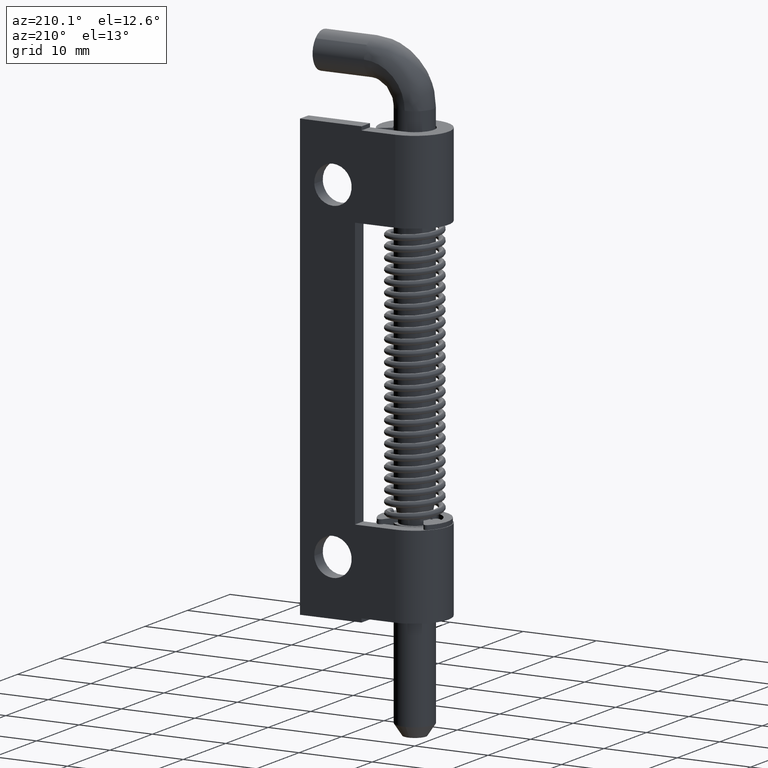
[diagram: clean part render]
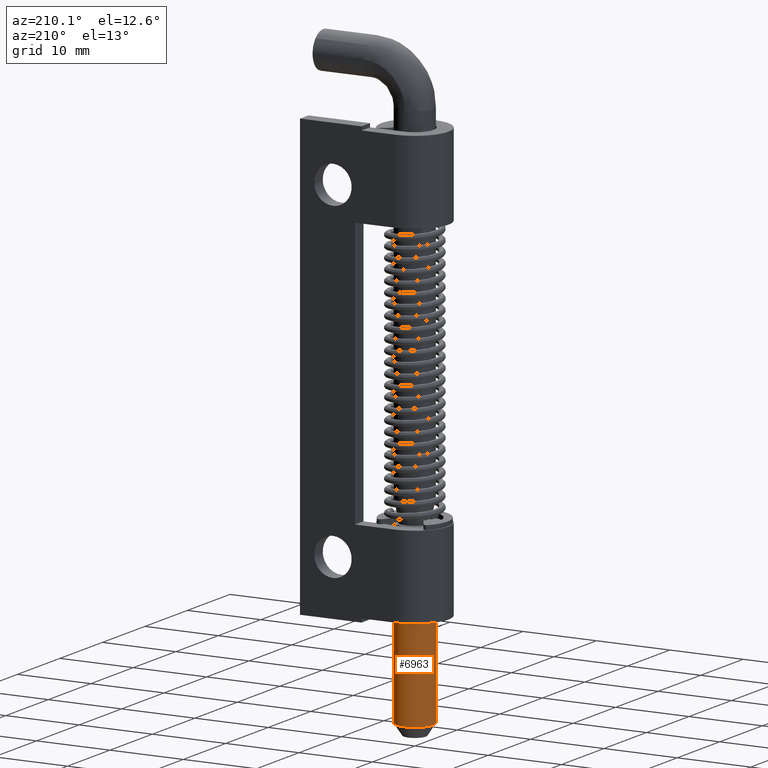
[diagram: same view with one face highlighted and labeled with its STEP entity id]
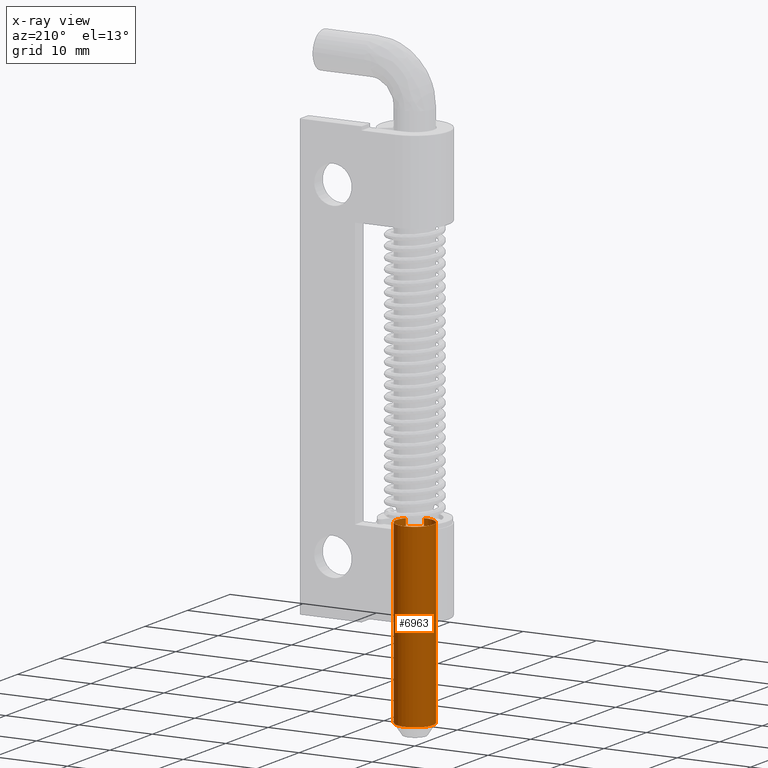
[diagram: x-ray of the same camera — body ghosted, the highlighted face saturated]
A machine part, auxiliary view. The second image highlights one B-rep face of the part: STEP entity #6963.
The next image is the same camera in x-ray: the body ghosted, the highlighted face saturated — about 0% of this face is hidden behind the body in this view.
In plain terms, the highlighted face is a freeform B-spline surface patch.
Its self-contained STEP definition (entity closure, byte-faithful):
#6808=CARTESIAN_POINT('',(2.052652900776311,-1.427100581225652,0.893749999999128));
#6809=CARTESIAN_POINT('',(2.562348395924031,-0.693986216063638,0.893749999999128));
#6810=CARTESIAN_POINT('',(2.492293334332819,0.196147739319614,0.893749999999128));
#6811=CARTESIAN_POINT('',(2.296145595013206,2.688441073652433,0.893749999999128));
#6812=CARTESIAN_POINT('',(-0.196147739319614,2.492293334332819,0.893749999999128));
#6813=CARTESIAN_POINT('',(-2.688441073652433,2.296145595013206,0.893749999999128));
#6814=CARTESIAN_POINT('',(-2.492293334332819,-0.196147739319614,0.893749999999128));
#6815=CARTESIAN_POINT('',(-2.296145595013206,-2.688441073652433,0.893749999999128));
#6816=CARTESIAN_POINT('',(0.196147739319614,-2.492293334332819,0.893749999999128));
#6817=CARTESIAN_POINT('',(2.052652900776311,-1.427100581225652,26.371406250035751));
#6818=CARTESIAN_POINT('',(2.562348395924031,-0.693986216063638,26.371406250035740));
#6819=CARTESIAN_POINT('',(2.492293334332819,0.196147739319614,26.371406250035751));
#6820=CARTESIAN_POINT('',(2.296145595013206,2.688441073652433,26.371406250035744));
#6821=CARTESIAN_POINT('',(-0.196147739319614,2.492293334332819,26.371406250035751));
#6822=CARTESIAN_POINT('',(-2.688441073652433,2.296145595013206,26.371406250035744));
#6823=CARTESIAN_POINT('',(-2.492293334332819,-0.196147739319614,26.371406250035751));
#6824=CARTESIAN_POINT('',(-2.296145595013206,-2.688441073652433,26.371406250035744));
#6825=CARTESIAN_POINT('',(0.196147739319614,-2.492293334332819,26.371406250035751));
#6833=(BOUNDED_SURFACE()B_SPLINE_SURFACE(2,1,((#6808,#6817),(#6809,#6818),(#6810,#6819),(#6811,#6820),(#6812,#6821),(#6813,#6822),(#6814,#6823),(#6815,#6824),(#6816,#6825)),.UNSPECIFIED.,.F.,.F.,.U.)B_SPLINE_SURFACE_WITH_KNOTS((3,2,2,2,3),(2,2),(0.0,1.822539674441617,5.964675298172566,10.106810921903520,14.248946545634469),(0.0,25.477656250036620),.UNSPECIFIED.)GEOMETRIC_REPRESENTATION_ITEM()RATIONAL_B_SPLINE_SURFACE(((0.855662221768731,0.855662221768731),(0.871126983722081,0.871126983722081),(1.0,1.0),(0.707106781186548,0.707106781186548),(1.0,1.0),(0.707106781186548,0.707106781186548),(1.0,1.0),(0.707106781186548,0.707106781186548),(1.0,1.0)))REPRESENTATION_ITEM('')SURFACE());
#6834=CARTESIAN_POINT('',(2.500000000000000,0.0,25.750000000034849));
#6835=VERTEX_POINT('',#6834);
#6836=CARTESIAN_POINT('',(2.052653886918321,-1.427099162818101,25.750000000034841));
#6837=VERTEX_POINT('',#6836);
#6838=CARTESIAN_POINT('',(2.500000000000000,0.0,25.750000000034849));
#6839=CARTESIAN_POINT('',(2.500000000000000,-0.783663330370304,25.750000000034849));
#6840=CARTESIAN_POINT('',(2.052653886918321,-1.427099162818100,25.750000000034831));
#6848=(BOUNDED_CURVE()B_SPLINE_CURVE(2,(#6838,#6839,#6840),.UNSPECIFIED.,.F.,.U.)B_SPLINE_CURVE_WITH_KNOTS((3,3),(0.500000000000000,0.598090503844090),.UNSPECIFIED.)CURVE()GEOMETRIC_REPRESENTATION_ITEM()RATIONAL_B_SPLINE_CURVE((1.0,0.885079826376285,0.860340274613374))REPRESENTATION_ITEM(''));
#6849=EDGE_CURVE('',#6835,#6837,#6848,.T.);
#6850=ORIENTED_EDGE('',*,*,#6849,.T.);
#6851=CARTESIAN_POINT('',(2.052653874762008,-1.427099180303038,1.500000000000000));
#6852=VERTEX_POINT('',#6851);
#6853=CARTESIAN_POINT('',(2.052653874762008,-1.427099180303038,1.500000000000000));
#6854=CARTESIAN_POINT('',(2.052653886918321,-1.427099162818101,25.750000000034841));
#6855=QUASI_UNIFORM_CURVE('',1,(#6853,#6854),.UNSPECIFIED.,.F.,.U.);
#6856=EDGE_CURVE('',#6852,#6837,#6855,.T.);
#6857=ORIENTED_EDGE('',*,*,#6856,.F.);
#6858=CARTESIAN_POINT('',(2.500000000000000,0.0,1.500000000000000));
#6859=VERTEX_POINT('',#6858);
#6860=CARTESIAN_POINT('',(2.500000000000000,0.0,1.500000000000000));
#6861=CARTESIAN_POINT('',(2.500000000000000,-0.783663342064315,1.500000000000000));
#6862=CARTESIAN_POINT('',(2.052653874762008,-1.427099180303038,1.500000000000001));
#6870=(BOUNDED_CURVE()B_SPLINE_CURVE(2,(#6860,#6861,#6862),.UNSPECIFIED.,.F.,.U.)B_SPLINE_CURVE_WITH_KNOTS((3,3),(0.500000000000000,0.598090505139608),.UNSPECIFIED.)CURVE()GEOMETRIC_REPRESENTATION_ITEM()RATIONAL_B_SPLINE_CURVE((1.0,0.885079824858491,0.860340273959885))REPRESENTATION_ITEM(''));
#6871=EDGE_CURVE('',#6859,#6852,#6870,.T.);
#6872=ORIENTED_EDGE('',*,*,#6871,.F.);
#6873=CARTESIAN_POINT('',(-0.196147739445208,2.492293334336904,1.500000000020889));
#6874=VERTEX_POINT('',#6873);
#6875=CARTESIAN_POINT('',(-0.196147739445208,2.492293334336904,1.500000000020889));
#6876=CARTESIAN_POINT('',(-0.098225267644254,2.500000000000000,1.500000000000000));
#6877=CARTESIAN_POINT('',(0.0,2.500000000000000,1.500000000000000));
#6878=CARTESIAN_POINT('',(2.500000000000000,2.500000000000000,1.500000000000000));
#6879=CARTESIAN_POINT('',(2.500000000000000,0.0,1.500000000000000));
#6887=(BOUNDED_CURVE()B_SPLINE_CURVE(2,(#6875,#6876,#6877,#6878,#6879),.UNSPECIFIED.,.F.,.U.)B_SPLINE_CURVE_WITH_KNOTS((3,2,3),(0.236331300615640,0.250000000000000,0.500000000000000),.UNSPECIFIED.)CURVE()GEOMETRIC_REPRESENTATION_ITEM()RATIONAL_B_SPLINE_CURVE((0.969723356136073,0.983986122561285,1.0,0.707106781186548,1.0))REPRESENTATION_ITEM(''));
#6888=EDGE_CURVE('',#6874,#6859,#6887,.T.);
#6889=ORIENTED_EDGE('',*,*,#6888,.F.);
#6890=CARTESIAN_POINT('',(-2.500000000000000,0.0,1.500000000000000));
#6891=VERTEX_POINT('',#6890);
#6892=CARTESIAN_POINT('',(-2.500000000000000,0.0,1.500000000000000));
#6893=CARTESIAN_POINT('',(-2.500000000000000,2.310976228913915,1.500000000000001));
#6894=CARTESIAN_POINT('',(-0.196147739445208,2.492293334336904,1.500000000020889));
#6902=(BOUNDED_CURVE()B_SPLINE_CURVE(2,(#6892,#6893,#6894),.UNSPECIFIED.,.F.,.U.)B_SPLINE_CURVE_WITH_KNOTS((3,3),(0.0,0.236331300615640),.UNSPECIFIED.)CURVE()GEOMETRIC_REPRESENTATION_ITEM()RATIONAL_B_SPLINE_CURVE((1.0,0.723120658625262,0.969723356136073))REPRESENTATION_ITEM(''));
#6903=EDGE_CURVE('',#6891,#6874,#6902,.T.);
#6904=ORIENTED_EDGE('',*,*,#6903,.F.);
#6905=CARTESIAN_POINT('',(0.196147739382411,-2.492293334334861,1.500000000020890));
#6906=VERTEX_POINT('',#6905);
#6907=CARTESIAN_POINT('',(0.196147739382411,-2.492293334334861,1.500000000020890));
#6908=CARTESIAN_POINT('',(0.098225267644253,-2.500000000000000,1.500000000000000));
#6909=CARTESIAN_POINT('',(0.0,-2.500000000000000,1.500000000000000));
#6910=CARTESIAN_POINT('',(-2.500000000000000,-2.500000000000000,1.500000000000000));
#6911=CARTESIAN_POINT('',(-2.500000000000000,0.0,1.500000000000000));
#6919=(BOUNDED_CURVE()B_SPLINE_CURVE(2,(#6907,#6908,#6909,#6910,#6911),.UNSPECIFIED.,.F.,.U.)B_SPLINE_CURVE_WITH_KNOTS((3,2,3),(0.736331300615640,0.750000000000000,1.0),.UNSPECIFIED.)CURVE()GEOMETRIC_REPRESENTATION_ITEM()RATIONAL_B_SPLINE_CURVE((0.969723356136073,0.983986122561285,1.0,0.707106781186548,1.0))REPRESENTATION_ITEM(''));
#6920=EDGE_CURVE('',#6906,#6891,#6919,.T.);
#6921=ORIENTED_EDGE('',*,*,#6920,.F.);
#6922=CARTESIAN_POINT('',(0.196147739368914,-2.492293334328940,25.750000000034849));
#6923=VERTEX_POINT('',#6922);
#6924=CARTESIAN_POINT('',(0.196147739382411,-2.492293334334861,1.500000000020890));
#6925=CARTESIAN_POINT('',(0.196147739368914,-2.492293334328940,25.750000000034849));
#6926=QUASI_UNIFORM_CURVE('',1,(#6924,#6925),.UNSPECIFIED.,.F.,.U.);
#6927=EDGE_CURVE('',#6906,#6923,#6926,.T.);
#6928=ORIENTED_EDGE('',*,*,#6927,.T.);
#6929=CARTESIAN_POINT('',(-2.500000000000000,0.0,25.750000000034849));
#6930=VERTEX_POINT('',#6929);
#6931=CARTESIAN_POINT('',(0.196147739368914,-2.492293334328940,25.750000000034841));
#6932=CARTESIAN_POINT('',(0.098225267568704,-2.500000000000000,25.750000000034845));
#6933=CARTESIAN_POINT('',(0.0,-2.500000000000000,25.750000000034849));
#6934=CARTESIAN_POINT('',(-2.500000000000000,-2.500000000000000,25.750000000034859));
#6935=CARTESIAN_POINT('',(-2.500000000000000,0.0,25.750000000034849));
#6943=(BOUNDED_CURVE()B_SPLINE_CURVE(2,(#6931,#6932,#6933,#6934,#6935),.UNSPECIFIED.,.F.,.U.)B_SPLINE_CURVE_WITH_KNOTS((3,2,3),(0.736331300625985,0.750000000000000,1.0),.UNSPECIFIED.)CURVE()GEOMETRIC_REPRESENTATION_ITEM()RATIONAL_B_SPLINE_CURVE((0.969723356157662,0.983986122573405,1.0,0.707106781186548,1.0))REPRESENTATION_ITEM(''));
#6944=EDGE_CURVE('',#6923,#6930,#6943,.T.);
#6945=ORIENTED_EDGE('',*,*,#6944,.T.);
#6946=CARTESIAN_POINT('',(-2.500000000000000,0.0,25.750000000034849));
#6947=CARTESIAN_POINT('',(-2.500000000000000,2.500000000000000,25.750000000034859));
#6948=CARTESIAN_POINT('',(0.0,2.500000000000000,25.750000000034849));
#6949=CARTESIAN_POINT('',(2.500000000000000,2.500000000000000,25.750000000034859));
#6950=CARTESIAN_POINT('',(2.500000000000000,0.0,25.750000000034849));
#6958=(BOUNDED_CURVE()B_SPLINE_CURVE(2,(#6946,#6947,#6948,#6949,#6950),.UNSPECIFIED.,.F.,.U.)B_SPLINE_CURVE_WITH_KNOTS((3,2,3),(0.0,0.250000000000000,0.500000000000000),.UNSPECIFIED.)CURVE()GEOMETRIC_REPRESENTATION_ITEM()RATIONAL_B_SPLINE_CURVE((1.0,0.707106781186548,1.0,0.707106781186548,1.0))REPRESENTATION_ITEM(''));
#6959=EDGE_CURVE('',#6930,#6835,#6958,.T.);
#6960=ORIENTED_EDGE('',*,*,#6959,.T.);
#6961=EDGE_LOOP('',(#6850,#6857,#6872,#6889,#6904,#6921,#6928,#6945,#6960));
#6962=FACE_OUTER_BOUND('',#6961,.T.);
#6963=ADVANCED_FACE('',(#6962),#6833,.T.);